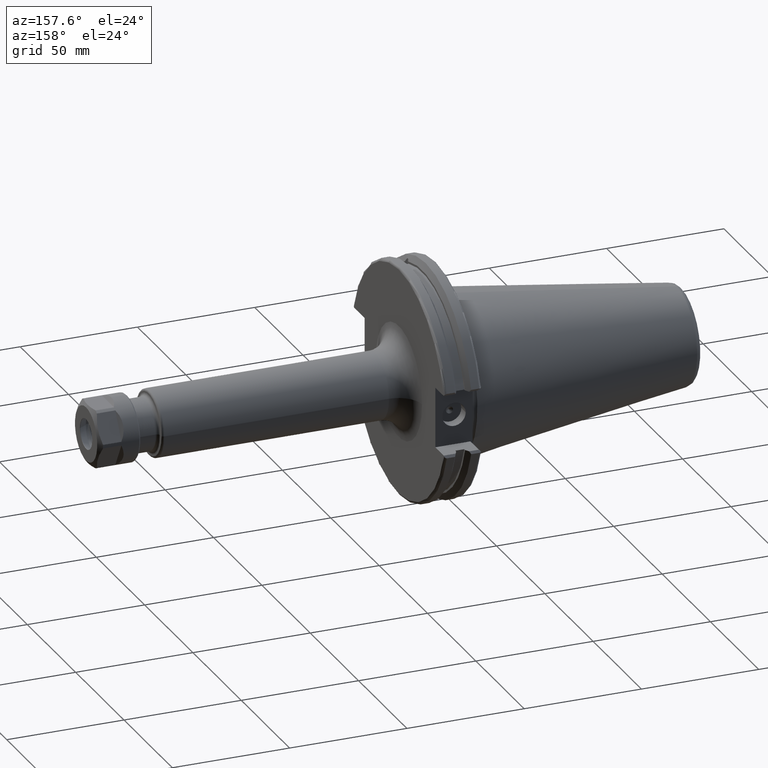
[diagram: clean part render]
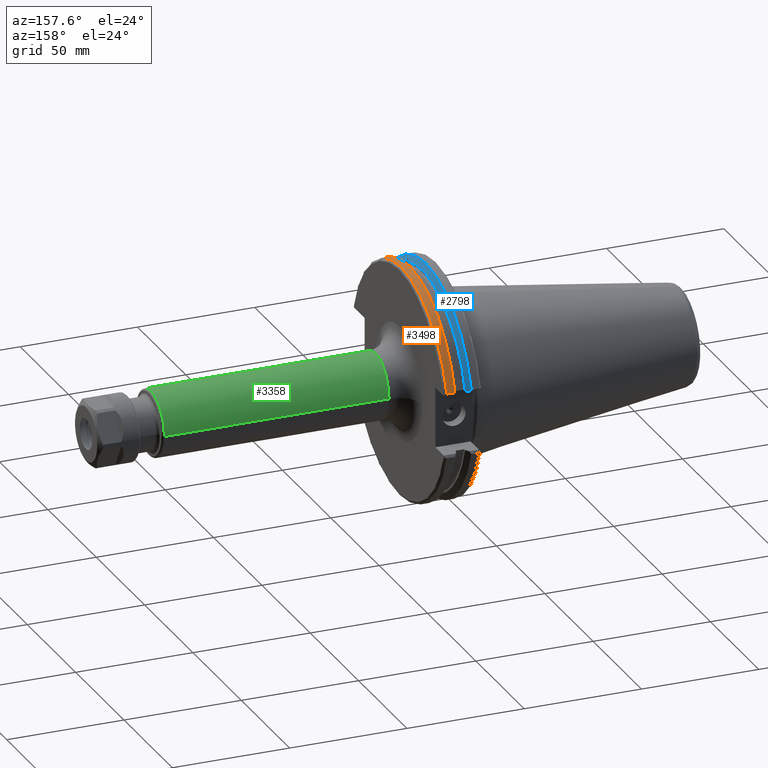
[diagram: same view with three faces highlighted in distinct colors, each labeled with its STEP entity id]
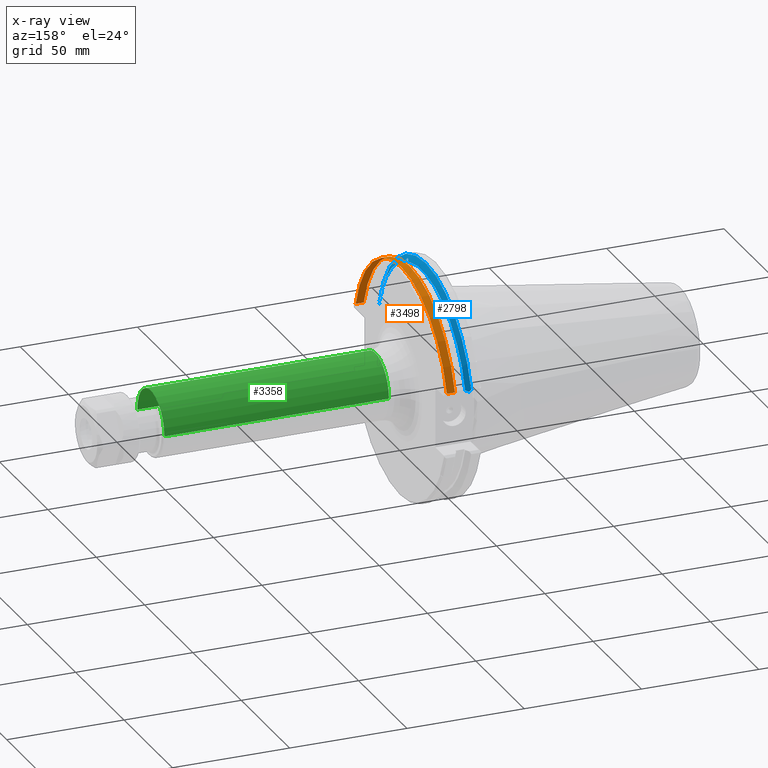
[diagram: x-ray of the same camera — body ghosted, the three highlighted faces saturated]
A machine part, auxiliary view with three faces highlighted in distinct colors.
The next image is the same camera in x-ray (body ghosted, the three faces saturated) — at least one of them is partly hidden behind the body in this view.
Their STEP definitions:

[orange] entity #3498 — the highlighted cylindrical surface (partial cylindrical patch) has radius 49.1998 mm, axis along (1, 0, 0).
#978=DIRECTION('',(1.E0,0.E0,0.E0));
#979=VECTOR('',#978,1.365974234408E-1);
#980=CARTESIAN_POINT('',(5.744025765592E-1,-1.858370921818E0,
5.462842821664E-1));
#981=LINE('',#980,#979);
#982=DIRECTION('',(-1.E0,0.E0,0.E0));
#983=VECTOR('',#982,1.365974234408E-1);
#984=CARTESIAN_POINT('',(7.11E-1,1.858370921818E0,5.462842821664E-1));
#985=LINE('',#984,#983);
#1339=CARTESIAN_POINT('',(5.744025765592E-1,0.E0,0.E0));
#1340=DIRECTION('',(1.E0,0.E0,0.E0));
#1341=DIRECTION('',(0.E0,9.594067742993E-1,2.820259587849E-1));
#1342=AXIS2_PLACEMENT_3D('',#1339,#1340,#1341);
#1573=CARTESIAN_POINT('',(5.744025765592E-1,1.858370921818E0,
5.462842821664E-1));
#1591=CARTESIAN_POINT('',(7.11E-1,0.E0,0.E0));
#1592=DIRECTION('',(-1.E0,0.E0,0.E0));
#1593=DIRECTION('',(0.E0,-9.594067742993E-1,2.820259587849E-1));
#1594=AXIS2_PLACEMENT_3D('',#1591,#1592,#1593);
#1608=CARTESIAN_POINT('',(7.11E-1,-1.858370921818E0,5.462842821664E-1));
#1610=CARTESIAN_POINT('',(5.744025765592E-1,-1.858370921818E0,
5.462842821664E-1));
#2167=VERTEX_POINT('',#1608);
#2168=CARTESIAN_POINT('',(7.11E-1,1.858370921818E0,5.462842821664E-1));
#2169=VERTEX_POINT('',#2168);
#2214=VERTEX_POINT('',#1573);
#2216=VERTEX_POINT('',#1610);
#3483=CARTESIAN_POINT('',(0.E0,0.E0,0.E0));
#3484=DIRECTION('',(1.E0,0.E0,0.E0));
#3485=DIRECTION('',(0.E0,0.E0,1.E0));
#3486=AXIS2_PLACEMENT_3D('',#3483,#3484,#3485);
#3487=CYLINDRICAL_SURFACE('',#3486,1.937E0);
#3489=ORIENTED_EDGE('',*,*,#3488,.F.);
#3491=ORIENTED_EDGE('',*,*,#3490,.F.);
#3493=ORIENTED_EDGE('',*,*,#3492,.F.);
#3495=ORIENTED_EDGE('',*,*,#3494,.F.);
#3496=EDGE_LOOP('',(#3489,#3491,#3493,#3495));
#3497=FACE_OUTER_BOUND('',#3496,.F.);
#3498=ADVANCED_FACE('',(#3497),#3487,.T.);
#1343=CIRCLE('',#1342,1.937E0);
#1595=CIRCLE('',#1594,1.937E0);
#3488=EDGE_CURVE('',#2167,#2169,#1595,.T.);
#3490=EDGE_CURVE('',#2216,#2167,#981,.T.);
#3492=EDGE_CURVE('',#2214,#2216,#1343,.T.);
#3494=EDGE_CURVE('',#2169,#2214,#985,.T.);

[blue] entity #2798 — the highlighted conical surface has half-angle 60 deg.
#332=CARTESIAN_POINT('',(3.63E-1,-6.866989873956E-1,1.696972363016E0));
#333=CARTESIAN_POINT('',(3.590563341943E-1,-6.848645017982E-1,
1.705083405602E0));
#334=CARTESIAN_POINT('',(3.520047164221E-1,-6.800551682863E-1,
1.720166015043E0));
#335=CARTESIAN_POINT('',(3.439905723671E-1,-6.692188262964E-1,
1.739298345157E0));
#336=CARTESIAN_POINT('',(3.392304945894E-1,-6.548164490815E-1,
1.753576350532E0));
#337=CARTESIAN_POINT('',(3.380741286163E-1,-6.385488469878E-1,
1.761693987863E0));
#338=CARTESIAN_POINT('',(3.401570168749E-1,-6.203718851453E-1,
1.764353583378E0));
#339=CARTESIAN_POINT('',(3.438440820237E-1,-6.069679946416E-1,
1.762235426925E0));
#340=CARTESIAN_POINT('',(3.462598028604E-1,-6.000907421094E-1,
1.760159450327E0));
#382=CARTESIAN_POINT('',(3.63E-1,0.E0,0.E0));
#383=DIRECTION('',(1.E0,0.E0,0.E0));
#384=DIRECTION('',(0.E0,-3.751125999139E-1,9.269792540213E-1));
#385=AXIS2_PLACEMENT_3D('',#382,#383,#384);
#387=CARTESIAN_POINT('',(3.015974234408E-1,0.E0,0.E0));
#388=DIRECTION('',(-1.E0,0.E0,0.E0));
#389=DIRECTION('',(0.E0,-9.594067742993E-1,2.820259587849E-1));
#390=AXIS2_PLACEMENT_3D('',#387,#388,#389);
#392=CARTESIAN_POINT('',(3.63E-1,0.E0,0.E0));
#393=DIRECTION('',(1.E0,0.E0,0.E0));
#394=DIRECTION('',(0.E0,9.610561134076E-1,2.763533008341E-1));
#395=AXIS2_PLACEMENT_3D('',#392,#393,#394);
#397=CARTESIAN_POINT('',(3.462598028604E-1,-6.000907421094E-1,
1.760159450327E0));
#398=CARTESIAN_POINT('',(3.476896772237E-1,-5.960200701444E-1,
1.758930671873E0));
#399=CARTESIAN_POINT('',(3.508714800292E-1,-5.879758342693E-1,
1.755830251968E0));
#400=CARTESIAN_POINT('',(3.564113186696E-1,-5.763391980961E-1,
1.749583454386E0));
#401=CARTESIAN_POINT('',(3.607126438959E-1,-5.685899213836E-1,
1.744277743716E0));
#402=CARTESIAN_POINT('',(3.63E-1,-5.647508655376E-1,1.741357849497E0));
#1492=CARTESIAN_POINT('',(3.247711479329E-1,1.828153385619E0,
5.059055118110E-1));
#1493=CARTESIAN_POINT('',(3.312205169777E-1,1.816562918326E0,
5.059055118110E-1));
#1494=CARTESIAN_POINT('',(3.440414558392E-1,1.793506120113E0,
5.059055118110E-1));
#1495=CARTESIAN_POINT('',(3.567065139617E-1,1.770697437349E0,
5.059055118110E-1));
#1496=CARTESIAN_POINT('',(3.63E-1,1.759355084470E0,5.059055118110E-1));
#1579=CARTESIAN_POINT('',(3.247711479329E-1,1.828153385619E0,
5.059055118110E-1));
#1580=CARTESIAN_POINT('',(3.209773186388E-1,1.833130855997E0,
5.125567533949E-1));
#1581=CARTESIAN_POINT('',(3.133212517519E-1,1.843144596003E0,
5.259378082053E-1));
#1582=CARTESIAN_POINT('',(3.055282154359E-1,1.853275892915E0,
5.394759507170E-1));
#1583=CARTESIAN_POINT('',(3.015974234408E-1,1.858370921818E0,
5.462842821664E-1));
#1626=CARTESIAN_POINT('',(3.015974234408E-1,-1.858370921818E0,
5.462842821664E-1));
#1627=CARTESIAN_POINT('',(3.055279093782E-1,-1.853276289622E0,
5.394764808244E-1));
#1628=CARTESIAN_POINT('',(3.133206426296E-1,-1.843145390249E0,
5.259388695313E-1));
#1629=CARTESIAN_POINT('',(3.209770156291E-1,-1.833131253543E0,
5.125572846235E-1));
#1630=CARTESIAN_POINT('',(3.247711479329E-1,-1.828153385619E0,
5.059055118110E-1));
#1640=CARTESIAN_POINT('',(3.63E-1,-1.759355084470E0,5.059055118110E-1));
#1641=CARTESIAN_POINT('',(3.567071415217E-1,-1.770696306338E0,
5.059055118110E-1));
#1642=CARTESIAN_POINT('',(3.440427123612E-1,-1.793503858867E0,
5.059055118110E-1));
#1643=CARTESIAN_POINT('',(3.312211458951E-1,-1.816561788068E0,
5.059055118110E-1));
#1644=CARTESIAN_POINT('',(3.247711479329E-1,-1.828153385619E0,
5.059055118110E-1));
#2133=CARTESIAN_POINT('',(3.63E-1,-6.866989873956E-1,1.696972363016E0));
#2135=VERTEX_POINT('',#2133);
#2137=CARTESIAN_POINT('',(3.63E-1,-5.647508655376E-1,1.741357849497E0));
#2139=VERTEX_POINT('',#2137);
#2150=CARTESIAN_POINT('',(3.462598028604E-1,-6.000907421094E-1,
1.760159450327E0));
#2152=VERTEX_POINT('',#2150);
#2173=VERTEX_POINT('',#1492);
#2174=VERTEX_POINT('',#1496);
#2191=CARTESIAN_POINT('',(3.63E-1,-1.759355084470E0,5.059055118110E-1));
#2193=VERTEX_POINT('',#2191);
#2199=VERTEX_POINT('',#1644);
#2213=VERTEX_POINT('',#1583);
#2215=VERTEX_POINT('',#1626);
#2775=CARTESIAN_POINT('',(3.322987117204E-1,0.E0,0.E0));
#2776=DIRECTION('',(-1.E0,0.E0,0.E0));
#2777=DIRECTION('',(0.E0,0.E0,-1.E0));
#2778=AXIS2_PLACEMENT_3D('',#2775,#2776,#2777);
#2779=CONICAL_SURFACE('',#2778,1.883823808842E0,6.E1);
#2780=ORIENTED_EDGE('',*,*,#2716,.F.);
#2782=ORIENTED_EDGE('',*,*,#2781,.T.);
#2784=ORIENTED_EDGE('',*,*,#2783,.T.);
#2786=ORIENTED_EDGE('',*,*,#2785,.F.);
#2788=ORIENTED_EDGE('',*,*,#2787,.T.);
#2790=ORIENTED_EDGE('',*,*,#2789,.F.);
#2792=ORIENTED_EDGE('',*,*,#2791,.T.);
#2794=ORIENTED_EDGE('',*,*,#2793,.T.);
#2795=ORIENTED_EDGE('',*,*,#2736,.F.);
#2796=EDGE_LOOP('',(#2780,#2782,#2784,#2786,#2788,#2790,#2792,#2794,#2795));
#2797=FACE_OUTER_BOUND('',#2796,.F.);
#2798=ADVANCED_FACE('',(#2797),#2779,.T.);
#341=B_SPLINE_CURVE_WITH_KNOTS('',3,(#332,#333,#334,#335,#336,#337,#338,#339,
#340),.UNSPECIFIED.,.F.,.F.,(4,1,1,1,1,1,4),(0.E0,1.666666666667E-1,
3.333333333333E-1,5.E-1,6.666666666667E-1,8.333333333333E-1,1.E0),
.UNSPECIFIED.);
#386=CIRCLE('',#385,1.830647617684E0);
#391=CIRCLE('',#390,1.937E0);
#396=CIRCLE('',#395,1.830647617684E0);
#403=B_SPLINE_CURVE_WITH_KNOTS('',3,(#397,#398,#399,#400,#401,#402),
.UNSPECIFIED.,.F.,.F.,(4,1,1,4),(0.E0,3.333333333333E-1,6.666666666667E-1,1.E0),
.UNSPECIFIED.);
#1497=B_SPLINE_CURVE_WITH_KNOTS('',3,(#1492,#1493,#1494,#1495,#1496),
.UNSPECIFIED.,.F.,.F.,(4,1,4),(0.E0,5.E-1,1.E0),.UNSPECIFIED.);
#1584=B_SPLINE_CURVE_WITH_KNOTS('',3,(#1579,#1580,#1581,#1582,#1583),
.UNSPECIFIED.,.F.,.F.,(4,1,4),(0.E0,5.E-1,1.E0),.UNSPECIFIED.);
#1631=B_SPLINE_CURVE_WITH_KNOTS('',3,(#1626,#1627,#1628,#1629,#1630),
.UNSPECIFIED.,.F.,.F.,(4,1,4),(0.E0,5.E-1,1.E0),.UNSPECIFIED.);
#1645=B_SPLINE_CURVE_WITH_KNOTS('',3,(#1640,#1641,#1642,#1643,#1644),
.UNSPECIFIED.,.F.,.F.,(4,1,4),(0.E0,5.E-1,1.E0),.UNSPECIFIED.);
#2716=EDGE_CURVE('',#2135,#2152,#341,.T.);
#2736=EDGE_CURVE('',#2152,#2139,#403,.T.);
#2781=EDGE_CURVE('',#2135,#2193,#386,.T.);
#2783=EDGE_CURVE('',#2193,#2199,#1645,.T.);
#2785=EDGE_CURVE('',#2215,#2199,#1631,.T.);
#2787=EDGE_CURVE('',#2215,#2213,#391,.T.);
#2789=EDGE_CURVE('',#2173,#2213,#1584,.T.);
#2791=EDGE_CURVE('',#2173,#2174,#1497,.T.);
#2793=EDGE_CURVE('',#2174,#2139,#396,.T.);

[green] entity #3358 — the highlighted cylindrical surface (edge-blend (fillet) strip) has radius 13.9954 mm, axis along (1, 0, 0).
#861=DIRECTION('',(-1.E0,0.E0,8.644087968990E-12));
#862=VECTOR('',#861,3.77E0);
#863=CARTESIAN_POINT('',(4.914E0,5.51E-1,-1.109625594669E-11));
#864=LINE('',#863,#862);
#870=DIRECTION('',(-1.E0,0.E0,-8.644006693168E-12));
#871=VECTOR('',#870,3.77E0);
#872=CARTESIAN_POINT('',(4.914E0,-5.51E-1,1.109611787335E-11));
#873=LINE('',#872,#871);
#874=CARTESIAN_POINT('',(4.914E0,0.E0,0.E0));
#875=DIRECTION('',(-1.E0,0.E0,0.E0));
#876=DIRECTION('',(0.E0,-1.E0,0.E0));
#877=AXIS2_PLACEMENT_3D('',#874,#875,#876);
#879=CARTESIAN_POINT('',(1.144E0,0.E0,0.E0));
#880=DIRECTION('',(1.E0,0.E0,0.E0));
#881=DIRECTION('',(0.E0,1.E0,0.E0));
#882=AXIS2_PLACEMENT_3D('',#879,#880,#881);
#2223=CARTESIAN_POINT('',(1.144E0,-5.51E-1,0.E0));
#2224=CARTESIAN_POINT('',(1.144E0,5.51E-1,0.E0));
#2225=VERTEX_POINT('',#2223);
#2226=VERTEX_POINT('',#2224);
#2227=CARTESIAN_POINT('',(4.914E0,5.51E-1,0.E0));
#2228=CARTESIAN_POINT('',(4.914E0,-5.51E-1,0.E0));
#2229=VERTEX_POINT('',#2227);
#2230=VERTEX_POINT('',#2228);
#3345=CARTESIAN_POINT('',(0.E0,0.E0,0.E0));
#3346=DIRECTION('',(1.E0,0.E0,0.E0));
#3347=DIRECTION('',(0.E0,-1.E0,0.E0));
#3348=AXIS2_PLACEMENT_3D('',#3345,#3346,#3347);
#3349=CYLINDRICAL_SURFACE('',#3348,5.51E-1);
#3351=ORIENTED_EDGE('',*,*,#3350,.F.);
#3352=ORIENTED_EDGE('',*,*,#3340,.T.);
#3354=ORIENTED_EDGE('',*,*,#3353,.F.);
#3355=ORIENTED_EDGE('',*,*,#3336,.F.);
#3356=EDGE_LOOP('',(#3351,#3352,#3354,#3355));
#3357=FACE_OUTER_BOUND('',#3356,.F.);
#3358=ADVANCED_FACE('',(#3357),#3349,.T.);
#878=CIRCLE('',#877,5.51E-1);
#883=CIRCLE('',#882,5.51E-1);
#3336=EDGE_CURVE('',#2229,#2226,#864,.T.);
#3340=EDGE_CURVE('',#2230,#2225,#873,.T.);
#3350=EDGE_CURVE('',#2230,#2229,#878,.T.);
#3353=EDGE_CURVE('',#2226,#2225,#883,.T.);